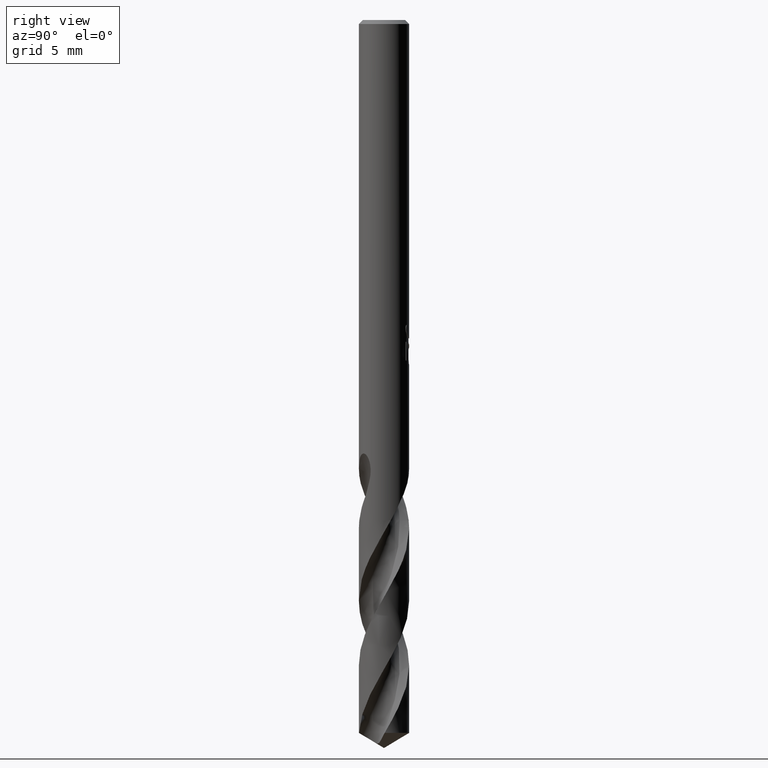
[diagram: clean part render]
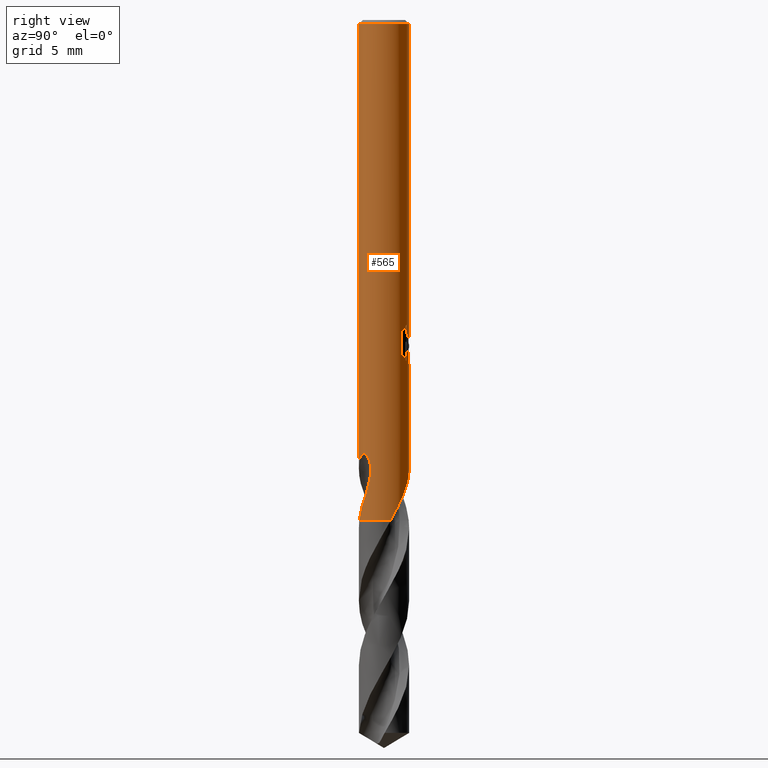
[diagram: same view with one face highlighted and labeled with its STEP entity id]
A machine part, right view. The second image highlights one B-rep face of the part: STEP entity #565.
In plain terms, the highlighted cylindrical surface (edge-blend (fillet) strip) has radius 1.9 mm, axis along (-0, -0, 1).
Its self-contained STEP definition (entity closure, byte-faithful):
#289=VERTEX_POINT('',#804);
#299=VERTEX_POINT('',#815);
#307=VERTEX_POINT('',#824);
#335=VERTEX_POINT('',#856);
#337=EDGE_CURVE('',#335,#363,#858,.T.);
#345=EDGE_CURVE('',#299,#651,#867,.T.);
#351=VERTEX_POINT('',#874);
#363=VERTEX_POINT('',#887);
#375=EDGE_CURVE('',#387,#623,#900,.T.);
#387=VERTEX_POINT('',#914);
#391=EDGE_CURVE('',#747,#757,#918,.T.);
#399=VERTEX_POINT('',#926);
#417=EDGE_CURVE('',#363,#299,#945,.T.);
#423=EDGE_CURVE('',#351,#399,#951,.T.);
#425=EDGE_CURVE('',#449,#651,#953,.T.);
#439=EDGE_CURVE('',#693,#597,#969,.T.);
#449=VERTEX_POINT('',#981);
#487=VERTEX_POINT('',#1020);
#551=EDGE_CURVE('',#731,#597,#1092,.T.);
#565=ADVANCED_FACE('',(#1107),#1108,.T.);
#571=EDGE_CURVE('',#449,#757,#1115,.T.);
#575=EDGE_CURVE('',#693,#307,#1119,.T.);
#587=EDGE_CURVE('',#487,#289,#1133,.T.);
#597=VERTEX_POINT('',#1144);
#609=EDGE_CURVE('',#747,#351,#1158,.T.);
#623=VERTEX_POINT('',#1174);
#651=VERTEX_POINT('',#1205);
#673=EDGE_CURVE('',#399,#623,#1227,.T.);
#693=VERTEX_POINT('',#1249);
#709=EDGE_CURVE('',#387,#731,#1265,.T.);
#731=VERTEX_POINT('',#1289);
#747=VERTEX_POINT('',#1305);
#757=VERTEX_POINT('',#1316);
#761=EDGE_CURVE('',#307,#487,#1320,.T.);
#763=EDGE_CURVE('',#289,#335,#1322,.T.);
#804=CARTESIAN_POINT('',(0.873560781758956,1.68727341014214,-25.7587351791531));
#815=CARTESIAN_POINT('',(0.799431726384364,1.7236324767334,-23.000000276873));
#824=CARTESIAN_POINT('',(0.29010312703583,1.87772207093703,-25.9998328990228));
#856=CARTESIAN_POINT('',(1.33721006514658,1.34976636558727,-25.2901657003257));
#858=LINE('',#2193,#2194);
#867=B_SPLINE_CURVE_WITH_KNOTS('',3,(#2219,#2220,#2221,#2222,#2223,#2224,#2225,#2226,#2227,#2228,#2229,#2230,#2231,#2232,#2233,#2234,#2235,#2236,#2237,#2238,#2239,#2240,#2241,#2242,#2243,#2244,#2245),.UNSPECIFIED.,.F.,.F.,(4,2,3,2,2,2,2,2,2,2,2,2,4),(-0.549097402110366,-0.274548701055183,0.0,0.274548701055183,0.549097402110365,0.827390658279231,1.1056839144481,1.37693201723175,1.64818012001541,1.92148865262143,2.19479718522745,2.46810571783348,2.7414142504395),.UNSPECIFIED.);
#874=CARTESIAN_POINT('',(1.54592011029632,-1.10459540673561,-34.8373975703887));
#887=CARTESIAN_POINT('',(1.33721006514658,1.34976636558728,-23.5150484364821));
#900=CIRCLE('',#2385,1.9);
#914=CARTESIAN_POINT('',(1.83032600056676,0.509810486013452,-37.8));
#918=LINE('',#2411,#2412);
#926=CARTESIAN_POINT('',(1.32064695167188,-1.36597643795191,-35.8778));
#945=B_SPLINE_CURVE_WITH_KNOTS('',3,(#2961,#2962,#2963,#2964,#2965,#2966,#2967,#2968,#2969,#2970),.UNSPECIFIED.,.F.,.F.,(4,2,2,2,4),(0.682377751563538,1.02356662734531,1.36475550312708,1.68936107127651,2.01396663942593),.UNSPECIFIED.);
#951=B_SPLINE_CURVE_WITH_KNOTS('',3,(#3039,#3040,#3041,#3042),.UNSPECIFIED.,.F.,.F.,(4,4),(0.0,1.09196780730607),.UNSPECIFIED.);
#953=LINE('',#3045,#3046);
#969=LINE('',#3066,#3067);
#981=CARTESIAN_POINT('',(0.0,1.9,-0.300000000000001));
#1020=CARTESIAN_POINT('',(0.873560781758957,1.68727341014214,-24.3198931596091));
#1092=B_SPLINE_CURVE_WITH_KNOTS('',3,(#4404,#4405,#4406,#4407,#4408,#4409,#4410,#4411,#4412,#4413,#4414,#4415,#4416,#4417,#4418,#4419,#4420,#4421,#4422,#4423,#4424,#4425,#4426,#4427,#4428,#4429,#4430,#4431),.UNSPECIFIED.,.F.,.F.,(4,2,2,2,2,2,2,2,2,2,2,2,2,4),(0.0,0.930896725868812,1.43918709684323,1.8995704239361,2.43442537099121,3.07690815496917,3.63375908794876,3.88610448691797,4.07053822624273,4.2450664905385,4.46646600120753,4.79038246894432,5.25086781089762,5.77450983232273),.UNSPECIFIED.);
#1107=FACE_OUTER_BOUND('',#4514,.T.);
#1108=CYLINDRICAL_SURFACE('',#4515,1.9);
#1115=CIRCLE('',#4523,1.9);
#1119=B_SPLINE_CURVE_WITH_KNOTS('',3,(#4548,#4549,#4550,#4551,#4552,#4553,#4554,#4555,#4556,#4557,#4558,#4559,#4560,#4561),.UNSPECIFIED.,.F.,.F.,(4,2,2,2,2,2,4),(6.40705677458947,6.75384675428594,7.08293395514204,7.41202115599814,7.74110835685424,8.07019555771033,8.394801163274),.UNSPECIFIED.);
#1133=LINE('',#4997,#4998);
#1144=CARTESIAN_POINT('',(-5.63221455693493E-013,1.9,-33.8581361608634));
#1158=B_SPLINE_CURVE_WITH_KNOTS('',3,(#5251,#5252,#5253,#5254,#5255,#5256,#5257,#5258,#5259,#5260,#5261,#5262,#5263,#5264,#5265,#5266,#5267,#5268,#5269,#5270,#5271,#5272,#5273,#5274,#5275,#5276,#5277,#5278),.UNSPECIFIED.,.F.,.F.,(4,2,2,2,2,2,2,2,2,2,2,2,2,4),(0.0,0.930896725868809,1.43918709684327,1.89957042393618,2.43442537099134,3.07690815496934,3.63375908794898,3.88610448691811,4.0705382262428,4.2450664905385,4.46646600120747,4.79038246894414,5.25086781089681,5.77450983232083),.UNSPECIFIED.);
#1174=CARTESIAN_POINT('',(0.353394599764259,-1.86684553642166,-37.8));
#1205=CARTESIAN_POINT('',(-2.60338784749601E-016,1.9,-24.0232688117743));
#1227=B_SPLINE_CURVE_WITH_KNOTS('',3,(#6501,#6502,#6503,#6504,#6505,#6506,#6507,#6508),.UNSPECIFIED.,.F.,.F.,(4,2,2,4),(0.0,0.486224196136048,0.93352985186892,2.02744134540802),.UNSPECIFIED.);
#1249=CARTESIAN_POINT('',(-1.44945831354929E-017,1.9,-26.0310253601033));
#1265=B_SPLINE_CURVE_WITH_KNOTS('',3,(#6984,#6985,#6986,#6987,#6988,#6989,#6990,#6991),.UNSPECIFIED.,.F.,.F.,(4,2,2,4),(0.0,1.30385602871837,2.26941359079067,3.92841260966135),.UNSPECIFIED.);
#1289=CARTESIAN_POINT('',(1.21071203354284,1.46430064257124,-35.8778));
#1305=CARTESIAN_POINT('',(5.6355452260088E-013,-1.9,-33.8581361608634));
#1316=CARTESIAN_POINT('',(2.32675207226252E-016,-1.9,-0.300000000000001));
#1320=ELLIPSE('',#7185,5.79118968940257,1.9);
#1322=B_SPLINE_CURVE_WITH_KNOTS('',3,(#7188,#7189,#7190,#7191,#7192,#7193,#7194,#7195,#7196,#7197),.UNSPECIFIED.,.F.,.F.,(4,2,2,2,4),(8.71930745342958,9.04391301203034,9.36851857063109,9.70970743287409,10.0508962951171),.UNSPECIFIED.);
#2193=CARTESIAN_POINT('',(1.33721006514658,1.34976636558727,-24.4026070684039));
#2194=VECTOR('',#7288,1.0);
#2219=CARTESIAN_POINT('',(0.666833593881052,1.77913826277546,-22.815314810961));
#2220=CARTESIAN_POINT('',(0.729156436544056,1.75577922091605,-22.8781275443334));
#2221=CARTESIAN_POINT('',(0.783736551744207,1.7313004169092,-22.9576861473125));
#2222=CARTESIAN_POINT('',(0.856885769825975,1.6962874226608,-23.1336179658344));
#2223=CARTESIAN_POINT('',(0.875400981188567,1.68631940098372,-23.2301257789017));
#2224=CARTESIAN_POINT('',(0.875400981188567,1.68631940098372,-23.3216420125868));
#2225=CARTESIAN_POINT('',(0.875400981188567,1.68631940098372,-23.4131582462718));
#2226=CARTESIAN_POINT('',(0.856885769825974,1.6962874226608,-23.5096660593391));
#2227=CARTESIAN_POINT('',(0.783736551744204,1.7313004169092,-23.685597877861));
#2228=CARTESIAN_POINT('',(0.729156436544057,1.75577922091605,-23.7651564808402));
#2229=CARTESIAN_POINT('',(0.603660733285726,1.8028158973629,-23.8916386471106));
#2230=CARTESIAN_POINT('',(0.523577862471086,1.82870417591542,-23.9471807096717));
#2231=CARTESIAN_POINT('',(0.346284885324924,1.87039555239642,-24.021654283086));
#2232=CARTESIAN_POINT('',(0.248975484923823,1.88589937305466,-24.0405166027747));
#2233=CARTESIAN_POINT('',(0.0664176989110847,1.90099020211123,-24.0405166027747));
#2234=CARTESIAN_POINT('',(-0.0297945902976769,1.9018278025641,-24.0225029728444));
#2235=CARTESIAN_POINT('',(-0.206502322805989,1.89081820897688,-23.9494411360825));
#2236=CARTESIAN_POINT('',(-0.287028841281158,1.87930641775675,-23.8944179367881));
#2237=CARTESIAN_POINT('',(-0.414569437604323,1.85536359392417,-23.7674957530888));
#2238=CARTESIAN_POINT('',(-0.470086990040862,1.84132785703124,-23.6868331760455));
#2239=CARTESIAN_POINT('',(-0.543989558938117,1.82086393925848,-23.5094883203028));
#2240=CARTESIAN_POINT('',(-0.562348199187247,1.81487313685306,-23.4127448567888));
#2241=CARTESIAN_POINT('',(-0.562348199187247,1.81487313685306,-23.2305391683848));
#2242=CARTESIAN_POINT('',(-0.543989558938117,1.82086393925848,-23.1337957048708));
#2243=CARTESIAN_POINT('',(-0.470086990040862,1.84132785703124,-22.9564508491281));
#2244=CARTESIAN_POINT('',(-0.414569437604324,1.85536359392417,-22.8757882720848));
#2245=CARTESIAN_POINT('',(-0.350557852833463,1.86738030187126,-22.8120870635646));
#2385=AXIS2_PLACEMENT_3D('',#7348,#7349,#7350);
#2411=CARTESIAN_POINT('',(2.32675207226252E-016,-1.9,-32.9));
#2412=VECTOR('',#7370,1.0);
#2961=CARTESIAN_POINT('',(1.46969755146541,1.2041549348886,-23.7635729081025));
#2962=CARTESIAN_POINT('',(1.42796339129449,1.25509241249312,-23.6657372438119));
#2963=CARTESIAN_POINT('',(1.37697707415867,1.31170891369226,-23.5728693392115));
#2964=CARTESIAN_POINT('',(1.2595593620689,1.424835553413,-23.4002591173667));
#2965=CARTESIAN_POINT('',(1.19307792454158,1.48135584670052,-23.3205575029555));
#2966=CARTESIAN_POINT('',(1.05351927089688,1.58341487660614,-23.181413983508));
#2967=CARTESIAN_POINT('',(0.975943248215751,1.63308217872769,-23.1162542058236));
#2968=CARTESIAN_POINT('',(0.804429231615732,1.72404067172904,-22.9991143802628));
#2969=CARTESIAN_POINT('',(0.710475580838627,1.76530276859489,-22.9471346678478));
#2970=CARTESIAN_POINT('',(0.610849749976286,1.79912828418485,-22.9046228085819));
#3039=CARTESIAN_POINT('',(1.54592011034894,-1.10459540666197,-34.8373975704177));
#3040=CARTESIAN_POINT('',(1.48466567652095,-1.19032314057397,-35.1858037098529));
#3041=CARTESIAN_POINT('',(1.41083771128062,-1.27877862952934,-35.5362831998041));
#3042=CARTESIAN_POINT('',(1.32064695167187,-1.36597643795191,-35.8778));
#3045=CARTESIAN_POINT('',(-2.32675207226252E-016,1.9,-32.9));
#3046=VECTOR('',#7382,1.0);
#3066=CARTESIAN_POINT('',(-2.32675207226252E-016,1.9,-32.9));
#3067=VECTOR('',#7404,1.0);
#4404=CARTESIAN_POINT('',(1.21071203354284,1.46430064257124,-35.8778));
#4405=CARTESIAN_POINT('',(1.08538087330129,1.56792686485841,-35.6135290802612));
#4406=CARTESIAN_POINT('',(0.941278308818906,1.66004339814314,-35.3671435189501));
#4407=CARTESIAN_POINT('',(0.690006337884163,1.77295146389738,-34.9555394209279));
#4408=CARTESIAN_POINT('',(0.59958700947352,1.80543079791102,-34.810723447385));
#4409=CARTESIAN_POINT('',(0.424546600169888,1.85397230287446,-34.5303971486895));
#4410=CARTESIAN_POINT('',(0.340707086095889,1.87112190445773,-34.3961934997419));
#4411=CARTESIAN_POINT('',(0.159229834318997,1.89587303984936,-34.1069488917869));
#4412=CARTESIAN_POINT('',(0.0600762303288924,1.90168393949035,-33.9496438769896));
#4413=CARTESIAN_POINT('',(-0.160118456058132,1.89705228779978,-33.6131166077025));
#4414=CARTESIAN_POINT('',(-0.290671617676801,1.88272651539859,-33.421628927856));
#4415=CARTESIAN_POINT('',(-0.542426530797416,1.82487212056622,-33.1058789172795));
#4416=CARTESIAN_POINT('',(-0.681712501963187,1.78079434988088,-32.951805206737));
#4417=CARTESIAN_POINT('',(-0.892520378424043,1.67890993681826,-32.8075307994537));
#4418=CARTESIAN_POINT('',(-0.962299118019629,1.64044626239386,-32.7718748476525));
#4419=CARTESIAN_POINT('',(-1.08456752146185,1.56124860066155,-32.7444846669144));
#4420=CARTESIAN_POINT('',(-1.13471666348301,1.5251813870785,-32.7439732162605));
#4421=CARTESIAN_POINT('',(-1.22812215179518,1.45089044992675,-32.7679452895581));
#4422=CARTESIAN_POINT('',(-1.26897305300971,1.41500940735062,-32.7904212478785));
#4423=CARTESIAN_POINT('',(-1.35210418437971,1.33637889976647,-32.8607459460686));
#4424=CARTESIAN_POINT('',(-1.3905644087216,1.29563059277345,-32.9126680904722));
#4425=CARTESIAN_POINT('',(-1.46934338524984,1.20665367368138,-33.0548470541541));
#4426=CARTESIAN_POINT('',(-1.50699816538279,1.15819937106815,-33.1603018334785));
#4427=CARTESIAN_POINT('',(-1.57780658952892,1.0609037274816,-33.4553525677252));
#4428=CARTESIAN_POINT('',(-1.60340547576235,1.01946044813557,-33.665483736829));
#4429=CARTESIAN_POINT('',(-1.61977323562939,0.993279704172418,-34.1678680838828));
#4430=CARTESIAN_POINT('',(-1.60817560749199,1.01746664945089,-34.4833068082756));
#4431=CARTESIAN_POINT('',(-1.54592011029632,1.10459540673562,-34.8373975703887));
#4514=EDGE_LOOP('',(#7527,#7528,#7529,#7530,#7531,#7532,#7533,#7534,#7535,#7536,#7537,#7538,#7539,#7540,#7541,#7542,#7543));
#4515=AXIS2_PLACEMENT_3D('',#7544,#7545,#7546);
#4523=AXIS2_PLACEMENT_3D('',#7556,#7557,#7558);
#4548=CARTESIAN_POINT('',(-1.37715452850624,1.30898640352555,-25.3154644794705));
#4549=CARTESIAN_POINT('',(-1.31898553053015,1.370184671221,-25.4014121448593));
#4550=CARTESIAN_POINT('',(-1.25300448248413,1.4311686122456,-25.4810161941255));
#4551=CARTESIAN_POINT('',(-1.11427859633646,1.54137110305681,-25.6201822895238));
#4552=CARTESIAN_POINT('',(-1.03713089292589,1.59502926269044,-25.6854587110489));
#4553=CARTESIAN_POINT('',(-0.866124927176479,1.69398537443821,-25.8031342592088));
#4554=CARTESIAN_POINT('',(-0.772250919425576,1.73925803776903,-25.8555317686663));
#4555=CARTESIAN_POINT('',(-0.572617065535277,1.81480022047995,-25.9414857272752));
#4556=CARTESIAN_POINT('',(-0.466619766295034,1.84512959850856,-25.975117058005));
#4557=CARTESIAN_POINT('',(-0.249338010619285,1.88681419282537,-26.0200207857969));
#4558=CARTESIAN_POINT('',(-0.138045680589051,1.89815082225961,-26.0312723335086));
#4559=CARTESIAN_POINT('',(0.0798276432471297,1.90140347946592,-26.0312723335086));
#4560=CARTESIAN_POINT('',(0.189987648331214,1.89362846342685,-26.0203187293329));
#4561=CARTESIAN_POINT('',(0.297835055379471,1.87651119895062,-25.9982717785655));
#4997=CARTESIAN_POINT('',(0.873560781758957,1.68727341014214,-25.0393141693811));
#4998=VECTOR('',#7576,1.0);
#5251=CARTESIAN_POINT('',(-1.21071203354284,-1.46430064257124,-35.8778));
#5252=CARTESIAN_POINT('',(-1.0853808733013,-1.56792686485841,-35.6135290802612));
#5253=CARTESIAN_POINT('',(-0.941278308818906,-1.66004339814314,-35.36714351895));
#5254=CARTESIAN_POINT('',(-0.690006337884158,-1.77295146389738,-34.9555394209279));
#5255=CARTESIAN_POINT('',(-0.599587009473506,-1.80543079791102,-34.810723447385));
#5256=CARTESIAN_POINT('',(-0.424546600169902,-1.85397230287446,-34.5303971486895));
#5257=CARTESIAN_POINT('',(-0.340707086095919,-1.87112190445772,-34.3961934997419));
#5258=CARTESIAN_POINT('',(-0.159229834318965,-1.89587303984936,-34.1069488917868));
#5259=CARTESIAN_POINT('',(-0.0600762303288743,-1.90168393949035,-33.9496438769895));
#5260=CARTESIAN_POINT('',(0.160118456058105,-1.89705228779978,-33.6131166077026));
#5261=CARTESIAN_POINT('',(0.290671617676792,-1.88272651539859,-33.421628927856));
#5262=CARTESIAN_POINT('',(0.542426530797424,-1.82487212056621,-33.1058789172795));
#5263=CARTESIAN_POINT('',(0.681712501963189,-1.78079434988088,-32.951805206737));
#5264=CARTESIAN_POINT('',(0.892520378424017,-1.67890993681827,-32.8075307994537));
#5265=CARTESIAN_POINT('',(0.96229911801962,-1.64044626239386,-32.7718748476525));
#5266=CARTESIAN_POINT('',(1.08456752146185,-1.56124860066155,-32.7444846669144));
#5267=CARTESIAN_POINT('',(1.13471666348301,-1.5251813870785,-32.7439732162605));
#5268=CARTESIAN_POINT('',(1.22812215179518,-1.45089044992675,-32.767945289558));
#5269=CARTESIAN_POINT('',(1.26897305300971,-1.41500940735062,-32.7904212478785));
#5270=CARTESIAN_POINT('',(1.35210418437972,-1.33637889976646,-32.8607459460686));
#5271=CARTESIAN_POINT('',(1.39056440872162,-1.29563059277343,-32.9126680904723));
#5272=CARTESIAN_POINT('',(1.46934338524981,-1.20665367368141,-33.054847054154));
#5273=CARTESIAN_POINT('',(1.50699816538277,-1.15819937106817,-33.1603018334784));
#5274=CARTESIAN_POINT('',(1.57780658952891,-1.06090372748162,-33.4553525677251));
#5275=CARTESIAN_POINT('',(1.60340547576235,-1.01946044813557,-33.6654837368289));
#5276=CARTESIAN_POINT('',(1.61977323562939,-0.993279704172422,-34.1678680838827));
#5277=CARTESIAN_POINT('',(1.60817560749201,-1.01746664945086,-34.4833068082755));
#5278=CARTESIAN_POINT('',(1.54592011029632,-1.10459540673561,-34.8373975703887));
#6501=CARTESIAN_POINT('',(1.32064695167187,-1.36597643795191,-35.8778));
#6502=CARTESIAN_POINT('',(1.26541319142911,-1.4193772837259,-36.0205087949905));
#6503=CARTESIAN_POINT('',(1.20572662189558,-1.47087521715971,-36.1625014288474));
#6504=CARTESIAN_POINT('',(1.07477892235638,-1.56875320019086,-36.4417115318782));
#6505=CARTESIAN_POINT('',(1.00871331945654,-1.6123395559406,-36.5737704969357));
#6506=CARTESIAN_POINT('',(0.755249808514641,-1.75565049941542,-37.0770777018813));
#6507=CARTESIAN_POINT('',(0.55882371556964,-1.82795772340039,-37.4375719383436));
#6508=CARTESIAN_POINT('',(0.353394599764244,-1.86684553642167,-37.8));
#6984=CARTESIAN_POINT('',(1.83032600056677,0.509810486013453,-37.8));
#6985=CARTESIAN_POINT('',(1.77205415883677,0.719018554394609,-37.423529854674));
#6986=CARTESIAN_POINT('',(1.68683808602565,0.887829492765456,-37.1098006394498));
#6987=CARTESIAN_POINT('',(1.54341905928901,1.11392769010067,-36.6327647911193));
#6988=CARTESIAN_POINT('',(1.48961362869953,1.18083139574479,-36.4596483000486));
#6989=CARTESIAN_POINT('',(1.38877811691545,1.30041203933895,-36.1856781878634));
#6990=CARTESIAN_POINT('',(1.31031287570908,1.38194874388607,-36.0284764723713));
#6991=CARTESIAN_POINT('',(1.21071203354284,1.46430064257124,-35.8778));
#7185=AXIS2_PLACEMENT_3D('',#7736,#7737,#7738);
#7188=CARTESIAN_POINT('',(0.610849773614847,1.79912827615895,-25.9005913115374));
#7189=CARTESIAN_POINT('',(0.71047560122687,1.76530276021269,-25.8580794534977));
#7190=CARTESIAN_POINT('',(0.804429248886464,1.72404066351364,-25.8060997426123));
#7191=CARTESIAN_POINT('',(0.975943259779512,1.63308217165138,-25.6889599204981));
#7192=CARTESIAN_POINT('',(1.0535192798704,1.58341487050117,-25.6238001447299));
#7193=CARTESIAN_POINT('',(1.19307792815201,1.4813558435795,-25.4846566299894));
#7194=CARTESIAN_POINT('',(1.2595593629377,1.42483555245367,-25.404955018616));
#7195=CARTESIAN_POINT('',(1.37697707033372,1.31170891749972,-25.2323448031809));
#7196=CARTESIAN_POINT('',(1.42796338551555,1.25509241891149,-25.1394769019469));
#7197=CARTESIAN_POINT('',(1.46969754410694,1.20415494386978,-25.0416412411354));
#7288=DIRECTION('',(-0.0,-0.0,1.0));
#7348=CARTESIAN_POINT('',(0.0,0.0,-37.8));
#7349=DIRECTION('',(0.0,0.0,-1.0));
#7350=DIRECTION('',(0.0,1.0,0.0));
#7370=DIRECTION('',(-0.0,-0.0,1.0));
#7382=DIRECTION('',(0.0,0.0,-1.0));
#7404=DIRECTION('',(0.0,0.0,-1.0));
#7527=ORIENTED_EDGE('',*,*,#425,.F.);
#7528=ORIENTED_EDGE('',*,*,#571,.T.);
#7529=ORIENTED_EDGE('',*,*,#391,.F.);
#7530=ORIENTED_EDGE('',*,*,#609,.T.);
#7531=ORIENTED_EDGE('',*,*,#423,.T.);
#7532=ORIENTED_EDGE('',*,*,#673,.T.);
#7533=ORIENTED_EDGE('',*,*,#375,.F.);
#7534=ORIENTED_EDGE('',*,*,#709,.T.);
#7535=ORIENTED_EDGE('',*,*,#551,.T.);
#7536=ORIENTED_EDGE('',*,*,#439,.F.);
#7537=ORIENTED_EDGE('',*,*,#575,.T.);
#7538=ORIENTED_EDGE('',*,*,#761,.T.);
#7539=ORIENTED_EDGE('',*,*,#587,.T.);
#7540=ORIENTED_EDGE('',*,*,#763,.T.);
#7541=ORIENTED_EDGE('',*,*,#337,.T.);
#7542=ORIENTED_EDGE('',*,*,#417,.T.);
#7543=ORIENTED_EDGE('',*,*,#345,.T.);
#7544=CARTESIAN_POINT('',(0.0,0.0,-32.9));
#7545=DIRECTION('',(-0.0,-0.0,1.0));
#7546=DIRECTION('',(0.0,1.0,0.0));
#7556=CARTESIAN_POINT('',(0.0,0.0,-0.300000000000001));
#7557=DIRECTION('',(0.0,0.0,-1.0));
#7558=DIRECTION('',(0.0,1.0,0.0));
#7576=DIRECTION('',(0.0,0.0,-1.0));
#7736=CARTESIAN_POINT('',(0.0,0.0,-26.8351219173269));
#7737=DIRECTION('',(0.944648353914092,0.0,-0.328084573619969));
#7738=DIRECTION('',(0.328084573619969,-0.0,0.944648353914092));